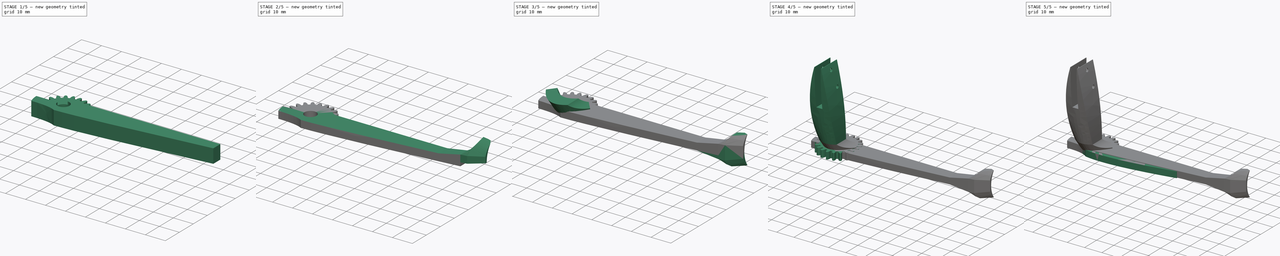
[diagram: build sequence overview — one tinted view per stage of 5, left to right]
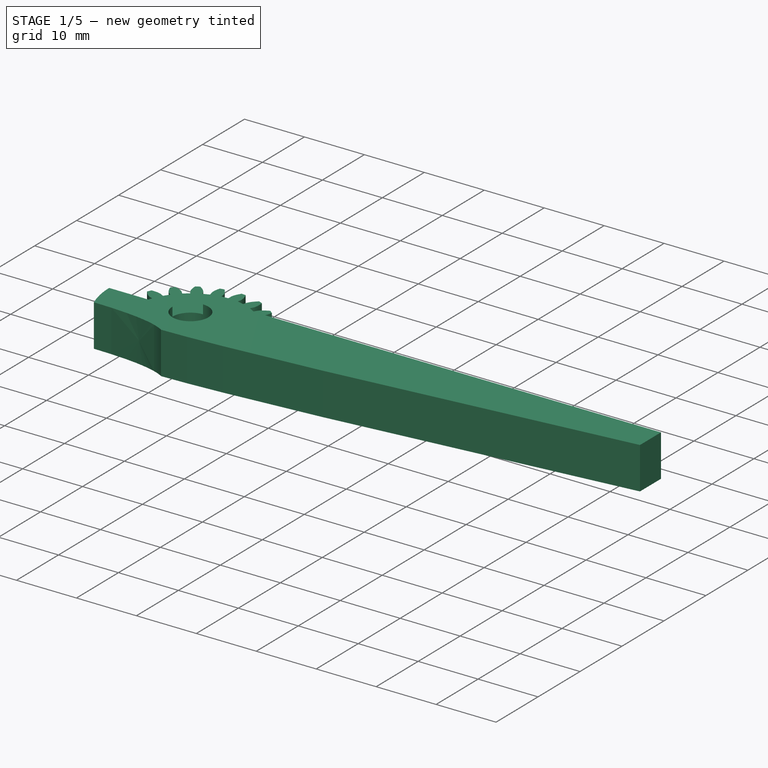
[diagram: stage 1 of 5 — iso view after this stage's code; geometry added in this stage tinted green]
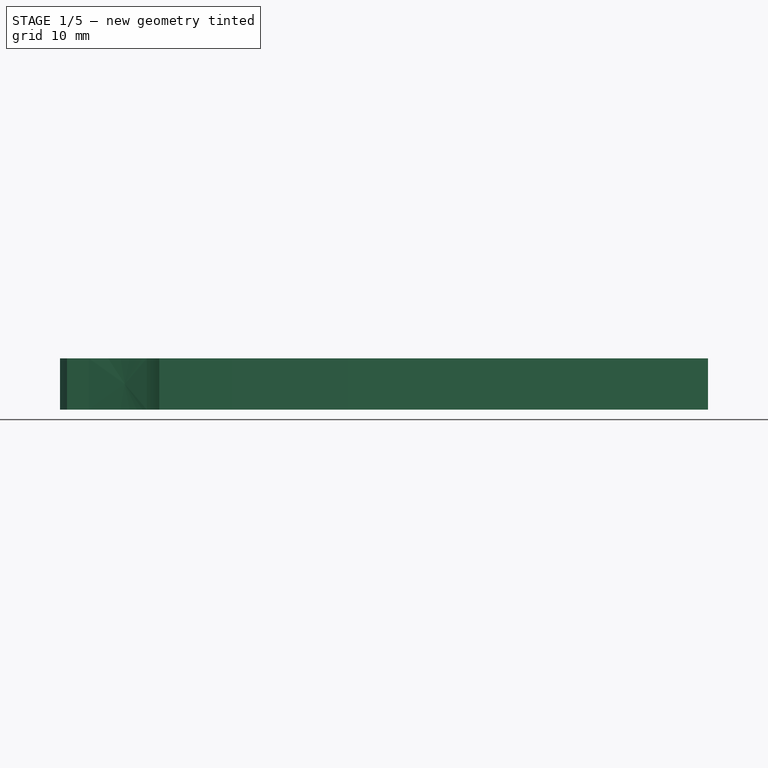
[diagram: stage 1 of 5 — front view after this stage's code; geometry added in this stage tinted green]
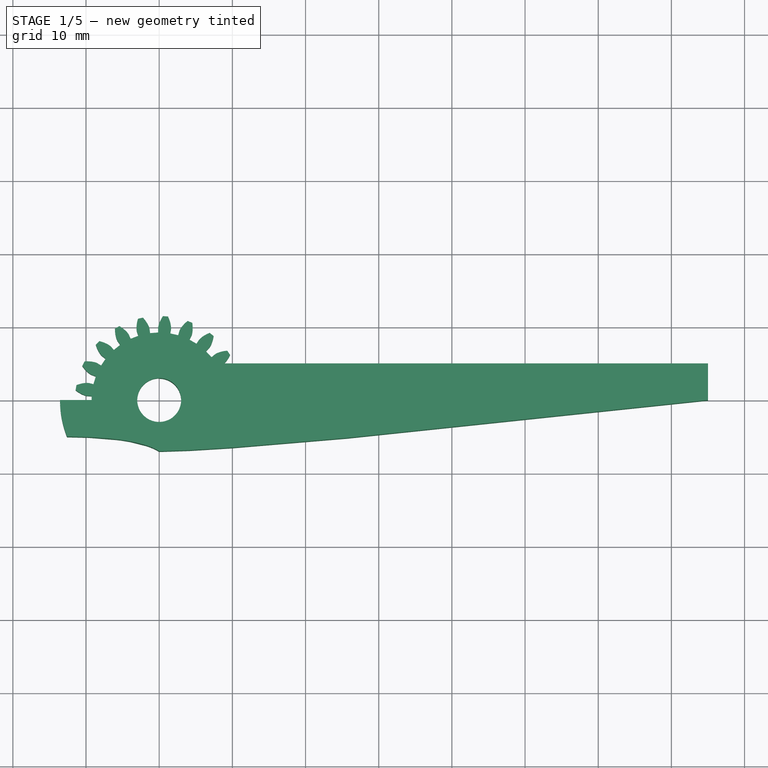
[diagram: stage 1 of 5 — top view after this stage's code; geometry added in this stage tinted green]
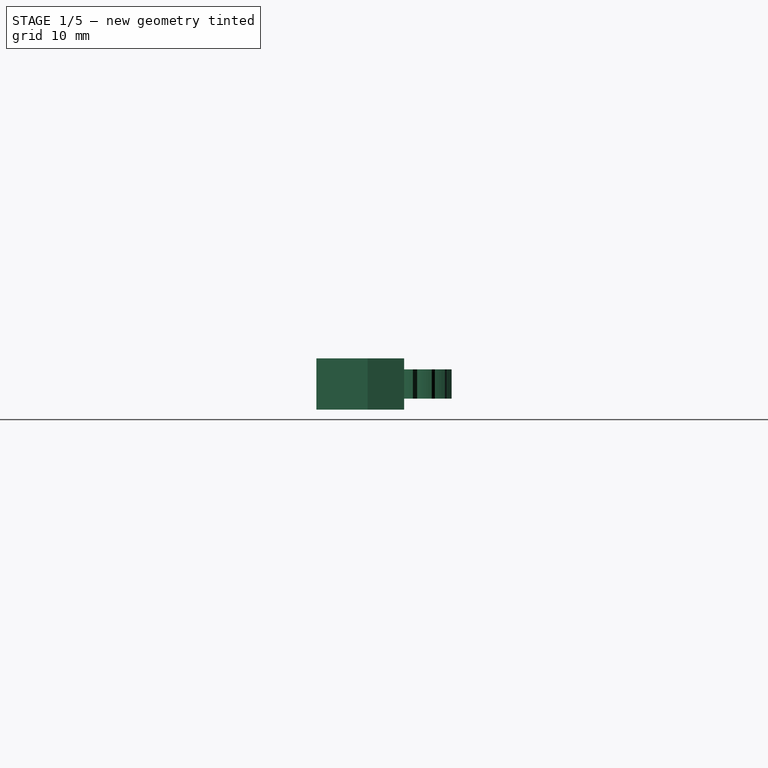
[diagram: stage 1 of 5 — right view after this stage's code; geometry added in this stage tinted green]
FCSTD DOCUMENT  (FreeCAD 1.0R39319 (Git))
Label: GripperFinger
License: All rights reserved
LicenseURL: https://en.wikipedia.org/wiki/All_rights_reserved
objects: Sketcher::SketchObject×21, PartDesign::Pocket×12, PartDesign::Body×3, PartDesign::AdditiveLoft×3, PartDesign::FeaturePython×2, PartDesign::Pad×2, PartDesign::Plane×2, PartDesign::Mirrored×2, PartDesign::Chamfer×1, App::LinkGroup×1
note: 109 computed .brp shape members not serialized (recipe doc carries the construction recipe); baked Part::Feature solids carry a one-line shape summary decoded from their .brp

FEATURE [PartDesign::Body] Body001  label="FingerSpring"
  AllowCompound = false
  Group = -> [Sketch007,Sketch010,AdditiveLoft,Sketch013,DatumPlane,Sketch014,Pocket007,Mirrored,Sketch015,Sketch016,Sketch017,AdditiveLoft001,Pocket008,Sketch018,Pocket009]
  Origin = -> Origin001
  Placement = pos=(2,9.8,-78) rot=(0,0,1;0rad)
  Tip = -> Pocket009
FEATURE [PartDesign::FeaturePython] InvoluteGear001  # WARN: FeaturePython — macro-defined, semantics opaque (R4)
  AttacherType = Attacher::AttachEngine3D
  Suppressed = false
  addendum_diameter = 23
  angular_backlash = 0
  axle_hole = false
  axle_holesize = 10
  backlash = 0
  clearance = 0.25
  double_helix = false
  head = 0
  head_fillet = 0
  height = 4
  helix_angle = 0
  module = 1
  num_teeth = 21
  numpoints = 20
  offset_hole = false
  offset_holeoffset = 10
  offset_holesize = 10
  pitch_diameter = 21
  pressure_angle = 20
  properties_from_tool = false
  reversed_backlash = false
  root_diameter = 18.5
  root_fillet = 0
  shift = 0
  simple = false
  transverse_pitch = 3.14159
  traverse_module = 1
  undercut = false
  version = 1.3.0
  expr: angular_backlash = backlash / pitch_diameter * 360 ° / pi
FEATURE [Sketcher::SketchObject] Sketch019
  ArcFitTolerance = 1e-06
  AttachmentSupport = -> [InvoluteGear001]
  FullyConstrained = false
  MakeInternals = false
  MapMode = 5
  Placement = pos=(0,0,0) rot=(1,0,0;3.14159rad)
  sketch-geometry (4):
    g0: LineSegment StartX=-14.5578 StartY=0 StartZ=0 EndX=16.3975 EndY=0 EndZ=0
    g1: LineSegment StartX=16.3975 StartY=0 StartZ=0 EndX=16.3975 EndY=18.6359 EndZ=0
    g2: LineSegment StartX=16.3975 StartY=18.6359 StartZ=0 EndX=-14.5578 EndY=18.6359 EndZ=0
    g3: LineSegment StartX=-14.5578 StartY=18.6359 StartZ=0 EndX=-14.5578 EndY=0 EndZ=0
  constraints (9):
    c: Coincident(g0,g1)
    c: Coincident(g1,g2)
    c: Coincident(g2,g3)
    c: Coincident(g3,g0)
    c: Horizontal(g0)
    c: Horizontal(g2)
    c: Vertical(g1)
    c: Vertical(g3)
    c: PointOnObject(g0,g-1)
FEATURE [PartDesign::Pocket] Pocket010
  BaseFeature = -> InvoluteGear001
  Direction = (0,0,1)
  Length = 5
  Length2 = 5
  Profile = -> Sketch019
  ReferenceAxis = -> Sketch019 [N_Axis]
  Refine = true
  Suppressed = false
  Type = 0
FEATURE [Sketcher::SketchObject] Sketch020
  ArcFitTolerance = 1e-06
  AttachmentOffset = pos=(0,0,1.5) rot=(0,0,1;0rad)
  AttachmentSupport = -> [Pocket010]
  FullyConstrained = false
  MakeInternals = false
  MapMode = 5
  Placement = pos=(0,0,-1.5) rot=(1,0,0;3.14159rad)
  sketch-geometry (17):
    g0: Circle [constr] CenterX=-12.5995 CenterY=5 CenterZ=0 NormalX=0 NormalY=0 NormalZ=1 AngleXU=0 Radius=1
    g1: Circle [constr] CenterX=-3.0955 CenterY=5.05206 CenterZ=0 NormalX=0 NormalY=0 NormalZ=1 AngleXU=0 Radius=1
    g2: Circle [constr] CenterX=0 CenterY=7 CenterZ=0 NormalX=0 NormalY=0 NormalZ=1 AngleXU=0 Radius=1
    g3: BSplineCurve PolesCount=3 KnotsCount=2 Degree=2 IsPeriodic=0
    g4: GeomPoint [constr] X=-12.5995 Y=5 Z=0
    g5: GeomPoint [constr] X=0 Y=7 Z=0
    g6: Circle [constr] CenterX=0 CenterY=7 CenterZ=0 NormalX=0 NormalY=0 NormalZ=1 AngleXU=0 Radius=1
    g7: Circle [constr] CenterX=13.9579 CenterY=6.86109 CenterZ=0 NormalX=0 NormalY=0 NormalZ=1 AngleXU=0 Radius=1
    g8: Circle [constr] CenterX=75 CenterY=1.7e-15 CenterZ=0 NormalX=0 NormalY=0 NormalZ=1 AngleXU=0 Radius=1
    g9: BSplineCurve PolesCount=3 KnotsCount=2 Degree=2 IsPeriodic=0
    g10: GeomPoint [constr] X=0 Y=7 Z=0
    g11: GeomPoint [constr] X=75 Y=0 Z=0
    g12: LineSegment StartX=0 StartY=-5 StartZ=0 EndX=75 EndY=-5 EndZ=0
    g13: LineSegment StartX=-13.5554 StartY=1.7e-15 StartZ=0 EndX=0 EndY=1.7e-15 EndZ=0
    g14: LineSegment StartX=0 StartY=1.7e-15 StartZ=0 EndX=0 EndY=-5 EndZ=0
    g15: ArcOfCircle CenterX=0 CenterY=1.7e-15 CenterZ=0 NormalX=0 NormalY=0 NormalZ=1 AngleXU=0 Radius=13.5554 StartAngle=2.76381 EndAngle=3.14159
    g16: LineSegment StartX=75 StartY=1.7e-15 StartZ=0 EndX=75 EndY=-5 EndZ=0
  constraints (35):
    c: Weight(g0) = 1
    c: Equal(g0,g1)
    c: Equal(g0,g2)
    c: InternalAlignment(g0,g3)
    c: InternalAlignment(g1,g3)
    c: InternalAlignment(g2,g3)
    c: InternalAlignment(g4,g3)
    c: InternalAlignment(g5,g3)
    c: Weight(g6) = 1
    c: Equal(g6,g7)
    c: Equal(g6,g8)
    c: InternalAlignment(g6,g9)
    c: InternalAlignment(g7,g9)
    c: InternalAlignment(g8,g9)
    c: InternalAlignment(g10,g9)
    c: InternalAlignment(g11,g9)
    c: Coincident(g6,g3)
    c: Horizontal(g12)
    c: Vertical(g-1,g9)
    c: Vertical(g12,g-1)
    c: Coincident(g13,g-1)
    c: Coincident(g13,g14)
    c: Coincident(g14,g12)
    c: Distance(g3,g13) = 5
    c: Horizontal(g13,g13)
    c: Coincident(g15,g13)
    c: Coincident(g15,g3)
    c: Coincident(g15,g13)
    c: Coincident(g16,g9)
    c: Vertical(g16)
    c: Distance(g-2,g16) = 75
    c: DistanceY(g-1,g9) = 7
    c: Coincident(g12,g16)
    c: Horizontal(g9,g13)
    c: Distance(g-1,g12) = 5
FEATURE [PartDesign::Pad] Pad001
  BaseFeature = -> Pocket010
  Direction = (0,0,-1)
  Length = 7
  Length2 = 10
  Profile = -> Sketch020
  ReferenceAxis = -> Sketch020 [N_Axis]
  Refine = true
  Reversed = true
  Suppressed = false
  Type = 0
FEATURE [Sketcher::SketchObject] Sketch021
  ArcFitTolerance = 1e-06
  AttachmentOffset = pos=(0,0,3) rot=(0,0,1;0rad)
  AttachmentSupport = -> [Pad001]
  FullyConstrained = true
  MakeInternals = false
  MapMode = 5
  Placement = pos=(0,0,-3) rot=(1,0,0;3.14159rad)
  sketch-geometry (1):
    g0: Circle CenterX=0 CenterY=0 CenterZ=0 NormalX=0 NormalY=0 NormalZ=1 AngleXU=0 Radius=3
  constraints (2):
    c: Diameter(g0) = 6
    c: Coincident(g0,g-1)
FEATURE [PartDesign::Pocket] Pocket011
  BaseFeature = -> Pad001
  Direction = (0,0,1)
  Length = 5
  Length2 = 5
  Profile = -> Sketch021
  ReferenceAxis = -> Sketch021 [N_Axis]
  Refine = true
  Suppressed = false
  Type = 1
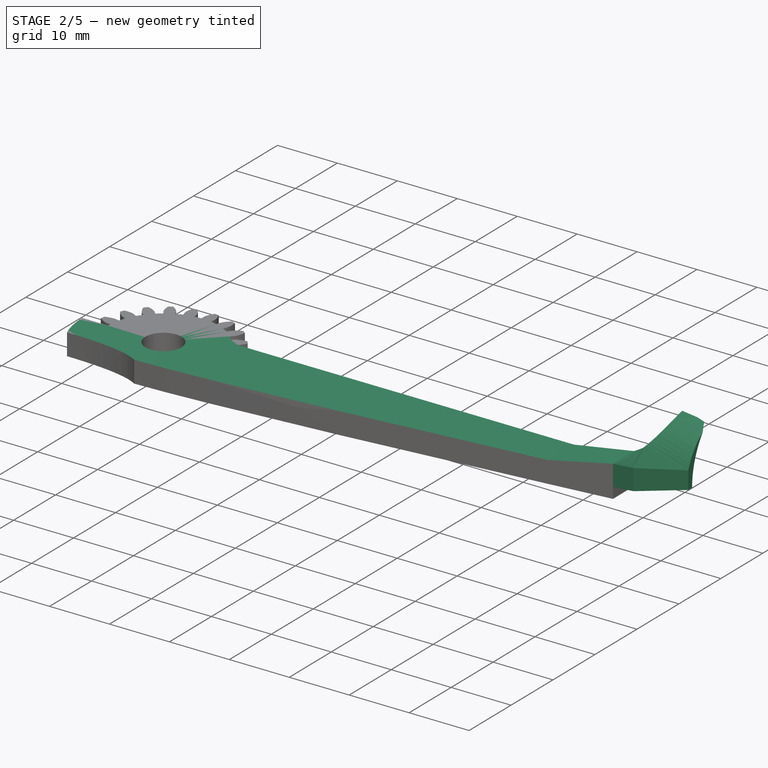
[diagram: stage 2 of 5 — iso view after this stage's code; geometry added in this stage tinted green]
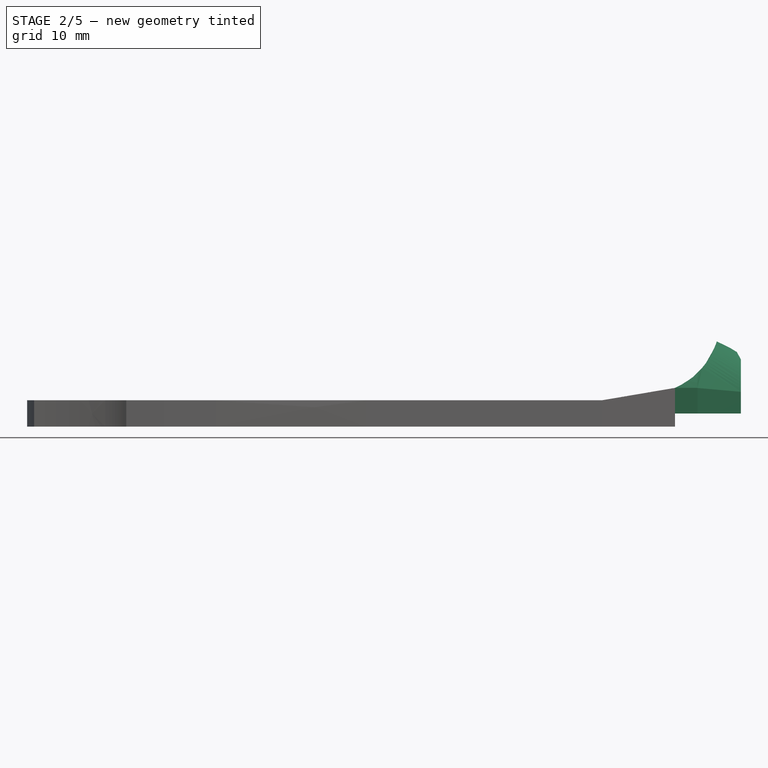
[diagram: stage 2 of 5 — front view after this stage's code; geometry added in this stage tinted green]
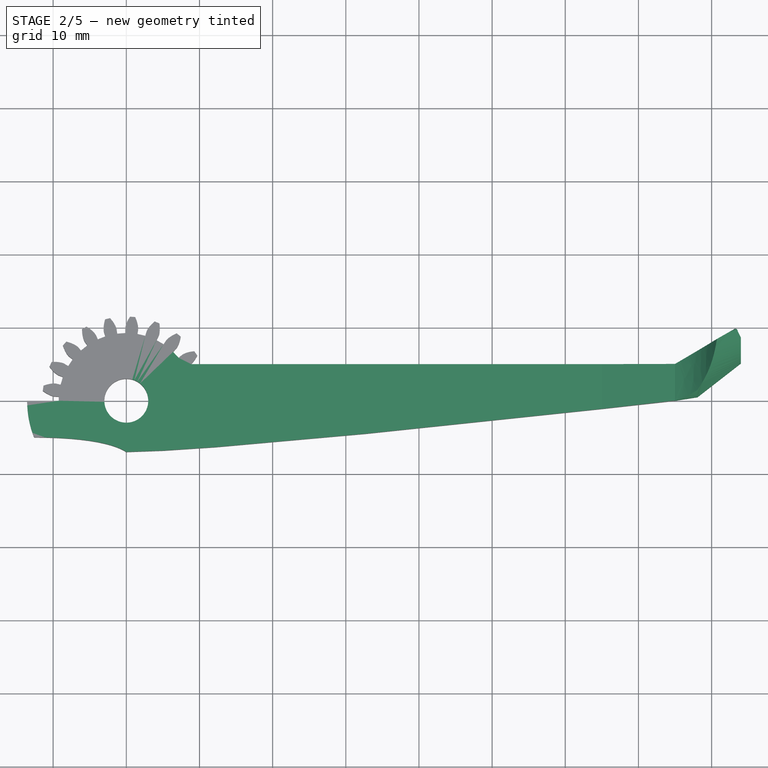
[diagram: stage 2 of 5 — top view after this stage's code; geometry added in this stage tinted green]
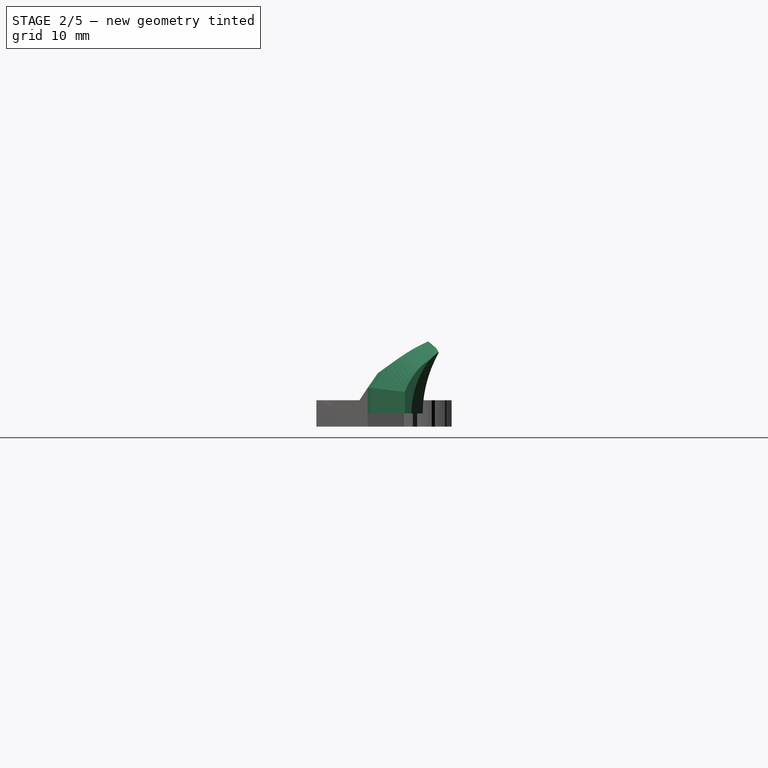
[diagram: stage 2 of 5 — right view after this stage's code; geometry added in this stage tinted green]
FEATURE [Sketcher::SketchObject] Sketch022
  ArcFitTolerance = 1e-06
  AttachmentOffset = pos=(0,0,-25) rot=(0,0,1;0rad)
  AttachmentSupport = -> [YZ_Plane002]
  FullyConstrained = false
  MakeInternals = false
  MapMode = 5
  Placement = pos=(-25,0,0) rot=(0.57735,0.57735,0.57735;2.0944rad)
  sketch-geometry (8):
    g0: LineSegment StartX=-24.0271 StartY=12.204 StartZ=0 EndX=-24.0271 EndY=3.8 EndZ=0
    g1: LineSegment StartX=-24.0271 StartY=3.8 StartZ=0 EndX=23.0976 EndY=3.8 EndZ=0
    g2: LineSegment StartX=23.0976 StartY=3.8 StartZ=0 EndX=23.0976 EndY=12.204 EndZ=0
    g3: LineSegment StartX=23.0976 StartY=12.204 StartZ=0 EndX=-24.0271 EndY=12.204 EndZ=0
    g4: LineSegment StartX=-23.6185 StartY=0.2 StartZ=0 EndX=-23.6185 EndY=-13.6366 EndZ=0
    g5: LineSegment StartX=-23.6185 StartY=-13.6366 StartZ=0 EndX=23.3999 EndY=-13.6366 EndZ=0
    g6: LineSegment StartX=23.3999 StartY=-13.6366 StartZ=0 EndX=23.3999 EndY=0.2 EndZ=0
    g7: LineSegment StartX=23.3999 StartY=0.2 StartZ=0 EndX=-23.6185 EndY=0.2 EndZ=0
  constraints (18):
    c: Coincident(g0,g1)
    c: Coincident(g1,g2)
    c: Coincident(g2,g3)
    c: Coincident(g3,g0)
    c: Vertical(g0)
    c: Vertical(g2)
    c: Horizontal(g1)
    c: Horizontal(g3)
    c: Distance(g-1,g1) = 3.8
    c: Coincident(g4,g5)
    c: Coincident(g5,g6)
    c: Coincident(g6,g7)
    c: Coincident(g7,g4)
    c: Vertical(g4)
    c: Vertical(g6)
    c: Horizontal(g5)
    c: Horizontal(g7)
    c: Distance(g1,g7) = 3.6
FEATURE [PartDesign::Pocket] Pocket012
  BaseFeature = -> Pocket011
  Direction = (-1,0,0)
  Length = 90
  Length2 = 5
  Profile = -> Sketch022
  ReferenceAxis = -> Sketch022 [N_Axis]
  Refine = true
  Reversed = true
  Suppressed = false
  Type = 0
FEATURE [Sketcher::SketchObject] Sketch023
  ArcFitTolerance = 1e-06
  AttachmentOffset = pos=(0,2,9) rot=(0,0,1;0rad)
  AttachmentSupport = -> [Pocket012]
  ExternalGeometry = -> [Pocket012]
  FullyConstrained = false
  MakeInternals = false
  MapMode = 5
  Placement = pos=(84,0,2) rot=(0.57735,0.57735,0.57735;2.0944rad)
  sketch-geometry (10):
    g0: Circle [constr] CenterX=1.41082 CenterY=3.5 CenterZ=0 NormalX=0 NormalY=0 NormalZ=1 AngleXU=0 Radius=1
    g1: Circle [constr] CenterX=3.41067 CenterY=8.94088 CenterZ=0 NormalX=0 NormalY=0 NormalZ=1 AngleXU=0 Radius=1
    g2: Circle [constr] CenterX=8.09245 CenterY=11.1604 CenterZ=0 NormalX=0 NormalY=0 NormalZ=1 AngleXU=0 Radius=1
    g3: BSplineCurve PolesCount=3 KnotsCount=2 Degree=2 IsPeriodic=0
    g4: GeomPoint [constr] X=1.41082 Y=3.5 Z=0
    g5: GeomPoint [constr] X=8.09245 Y=11.1604 Z=0
    g6: LineSegment StartX=8.09245 StartY=11.1604 StartZ=0 EndX=9.59245 EndY=8.56231 EndZ=0
    g7: ArcOfCircle CenterX=18 CenterY=0 CenterZ=0 NormalX=0 NormalY=0 NormalZ=1 AngleXU=0 Radius=12 StartAngle=2.34708 EndAngle=3.14159
    g8: LineSegment StartX=1.41082 StartY=3.5 StartZ=0 EndX=1.41082 EndY=1.3e-15 EndZ=0
    g9: LineSegment StartX=1.41082 StartY=1.3e-15 StartZ=0 EndX=6 EndY=1.3e-15 EndZ=0
  constraints (23):
    c: Weight(g0) = 1
    c: Equal(g0,g1)
    c: Equal(g0,g2)
    c: InternalAlignment(g0,g3)
    c: InternalAlignment(g1,g3)
    c: InternalAlignment(g2,g3)
    c: InternalAlignment(g4,g3)
    c: InternalAlignment(g5,g3)
    c: Coincident(g6,g3)
    c: PointOnObject(g7,g-1)
    c: Coincident(g7,g6)
    c: DistanceX(g-1,g7) = 18
    c: Radius(g7) = 12
    c: Angle(g6,g-1) = 1.0472
    c: Coincident(g8,g3)
    c: PointOnObject(g8,g-1)
    c: Vertical(g8)
    c: Coincident(g8,g9)
    c: Coincident(g9,g7)
    c: Horizontal(g9)
    c: Horizontal(g3,g-3)
    c: Distance(g6,g6) = 3
    c: Distance(g7,g6) = 3
FEATURE [Sketcher::SketchObject] Sketch024
  ArcFitTolerance = 1e-06
  AttachmentOffset = pos=(0,2,0) rot=(0,0,1;0rad)
  AttachmentSupport = -> [Pocket012]
  ExternalGeometry = -> [Pocket012]
  FullyConstrained = false
  MakeInternals = false
  MapMode = 5
  Placement = pos=(75,0,2) rot=(0.57735,0.57735,0.57735;2.0944rad)
  sketch-geometry (10):
    g0: ArcOfCircle CenterX=18 CenterY=0 CenterZ=0 NormalX=0 NormalY=0 NormalZ=1 AngleXU=0 Radius=9 StartAngle=2.43423 EndAngle=3.14159
    g1: Circle [constr] CenterX=-4e-16 CenterY=3.5 CenterZ=0 NormalX=0 NormalY=0 NormalZ=1 AngleXU=0 Radius=1
    g2: Circle [constr] CenterX=1.88607 CenterY=8.5237 CenterZ=0 NormalX=0 NormalY=0 NormalZ=1 AngleXU=0 Radius=1
    g3: Circle [constr] CenterX=7.60571 CenterY=12.0034 CenterZ=0 NormalX=0 NormalY=0 NormalZ=1 AngleXU=0 Radius=1
    g4: BSplineCurve PolesCount=3 KnotsCount=2 Degree=2 IsPeriodic=0
    g5: GeomPoint [constr] X=-4e-16 Y=3.5 Z=0
    g6: GeomPoint [constr] X=7.60571 Y=12.0034 Z=0
    g7: LineSegment StartX=7.60571 StartY=12.0034 StartZ=0 EndX=11.1593 EndY=5.84847 EndZ=0
    g8: LineSegment StartX=-4e-16 StartY=3.5 StartZ=0 EndX=0 EndY=0 EndZ=0
    g9: LineSegment StartX=9 StartY=1.1e-15 StartZ=0 EndX=0 EndY=0 EndZ=0
  constraints (21):
    c: Radius(g0) = 9
    c: PointOnObject(g0,g-1)
    c: PointOnObject(g0,g-1)
    c: DistanceX(g-1,g0) = 18
    c: Weight(g1) = 1
    c: Equal(g1,g2)
    c: Equal(g1,g3)
    c: InternalAlignment(g1,g4)
    c: InternalAlignment(g2,g4)
    c: InternalAlignment(g3,g4)
    c: InternalAlignment(g5,g4)
    c: InternalAlignment(g6,g4)
    c: Coincident(g7,g4)
    c: Coincident(g7,g0)
    c: Coincident(g4,g-3)
    c: Coincident(g8,g4)
    c: Symmetric(g-3,g-3,g8)
    c: Coincident(g9,g0)
    c: Coincident(g9,g8)
    c: Angle(g-1,g7) = 2.0944
    c: Distance(g0,g7) = 3
FEATURE [PartDesign::AdditiveLoft] AdditiveLoft002
  BaseFeature = -> Pocket012
  Closed = false
  Profile = -> Sketch023
  Refine = true
  Ruled = false
  Sections = -> [Sketch024]
  Suppressed = false
FEATURE [Sketcher::SketchObject] Sketch027
  ArcFitTolerance = 1e-06
  AttachmentSupport = -> [AdditiveLoft002]
  FullyConstrained = false
  MakeInternals = false
  MapMode = 45
  Placement = pos=(79.0131,4.14569,2) rot=(0,0,1;1.33086rad)
  sketch-geometry (4):
    g0: LineSegment StartX=-0.123853 StartY=4.10118 StartZ=0 EndX=10.364 EndY=-6.8556 EndZ=0
    g1: LineSegment StartX=-0.123853 StartY=4.10118 StartZ=0 EndX=5.99341 EndY=7.95613 EndZ=0
    g2: LineSegment StartX=10.364 StartY=-6.8556 StartZ=0 EndX=17.134 EndY=-5.19933 EndZ=0
    g3: LineSegment StartX=5.99341 StartY=7.95613 StartZ=0 EndX=17.134 EndY=-5.19933 EndZ=0
  constraints (7):
    c: Coincident(g0,g-4)
    c: Coincident(g1,g0)
    c: Angle(g0,g-4) = 1.0472
    c: Coincident(g2,g0)
    c: Coincident(g1,g3)
    c: Coincident(g3,g2)
    c: Parallel(g2,g-4)
FEATURE [PartDesign::Chamfer] Chamfer
  Angle = 29
  Base = -> AdditiveLoft002 [Edge200,Edge205]
  BaseFeature = -> AdditiveLoft002
  ChamferType = 2
  FlipDirection = false
  Refine = true
  Size = 6
  Size2 = 1
  SupportTransform = false
  Suppressed = false
  UseAllEdges = false
FEATURE [PartDesign::Pocket] Pocket017
  BaseFeature = -> Chamfer
  Direction = (0,0,-1)
  Length = 5
  Length2 = 5
  Profile = -> Sketch027
  ReferenceAxis = -> Sketch027 [N_Axis]
  Refine = true
  Reversed = true
  Suppressed = false
  Type = 1
FEATURE [Sketcher::SketchObject] Sketch028
  ArcFitTolerance = 1e-06
  AttachmentOffset = pos=(0,0,6) rot=(0,0,1;0rad)
  AttachmentSupport = -> [Pocket017]
  ExternalGeometry = -> [Pocket017]
  FullyConstrained = false
  MakeInternals = false
  MapMode = 5
  Placement = pos=(0,11,-1.3e-15) rot=(0,0.707107,0.707107;3.14159rad)
  sketch-geometry (13):
    g0: Circle [constr] CenterX=-75 CenterY=5.5 CenterZ=0 NormalX=0 NormalY=0 NormalZ=1 AngleXU=0 Radius=1
    g1: Circle [constr] CenterX=-80.5652 CenterY=7.89941 CenterZ=0 NormalX=0 NormalY=0 NormalZ=1 AngleXU=0 Radius=1
    g2: Circle [constr] CenterX=-81.5147 CenterY=15.3694 CenterZ=0 NormalX=0 NormalY=0 NormalZ=1 AngleXU=0 Radius=1
    g3: BSplineCurve PolesCount=3 KnotsCount=2 Degree=2 IsPeriodic=0
    g4: GeomPoint [constr] X=-75 Y=5.5 Z=0
    g5: GeomPoint [constr] X=-81.5147 Y=15.3694 Z=0
    g6: LineSegment StartX=-75 StartY=5.5 StartZ=0 EndX=-65 EndY=3.8 EndZ=0
    g7: LineSegment StartX=-65 StartY=3.8 StartZ=0 EndX=-65 EndY=15.3694 EndZ=0
    g8: LineSegment StartX=-65 StartY=15.3694 StartZ=0 EndX=-81.5147 EndY=15.3694 EndZ=0
    g9: LineSegment StartX=-65 StartY=-1.5 StartZ=0 EndX=-65 EndY=0.2 EndZ=0
    g10: LineSegment StartX=-65 StartY=0.2 StartZ=0 EndX=-79.539 EndY=0.2 EndZ=0
    g11: LineSegment StartX=-79.539 StartY=0.2 StartZ=0 EndX=-79.539 EndY=-1.5 EndZ=0
    g12: LineSegment StartX=-79.539 StartY=-1.5 StartZ=0 EndX=-65 EndY=-1.5 EndZ=0
  constraints (25):
    c: Weight(g0) = 1
    c: Equal(g0,g1)
    c: Equal(g0,g2)
    c: InternalAlignment(g0,g3)
    c: InternalAlignment(g1,g3)
    c: InternalAlignment(g2,g3)
    c: InternalAlignment(g4,g3)
    c: InternalAlignment(g5,g3)
    c: Coincident(g0,g-3)
    c: Coincident(g6,g3)
    c: Coincident(g6,g7)
    c: Vertical(g7)
    c: Coincident(g7,g8)
    c: Coincident(g8,g3)
    c: Horizontal(g8)
    c: Coincident(g-4,g6)
    c: Coincident(g9,g10)
    c: Coincident(g10,g11)
    c: Coincident(g11,g12)
    c: Coincident(g12,g9)
    c: Vertical(g11)
    c: Horizontal(g10)
    c: Horizontal(g12)
    c: Coincident(g9,g-5)
    c: Coincident(g-5,g9)
FEATURE [PartDesign::Pocket] Pocket018
  BaseFeature = -> Pocket017
  Direction = (0,-1,2e-16)
  Length = 5
  Length2 = 5
  Profile = -> Sketch028
  ReferenceAxis = -> Sketch028 [N_Axis]
  Refine = true
  Suppressed = false
  Type = 1
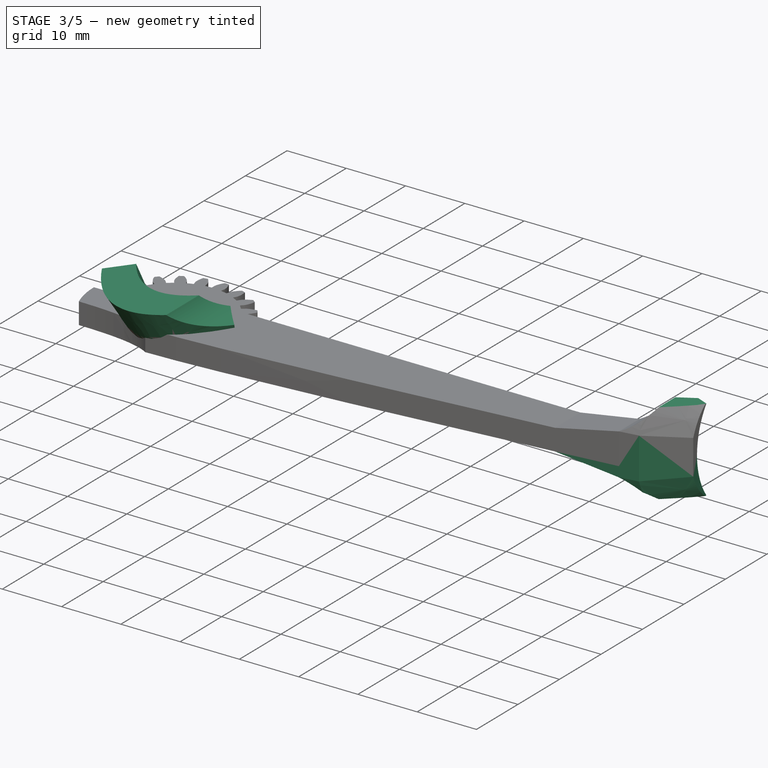
[diagram: stage 3 of 5 — iso view after this stage's code; geometry added in this stage tinted green]
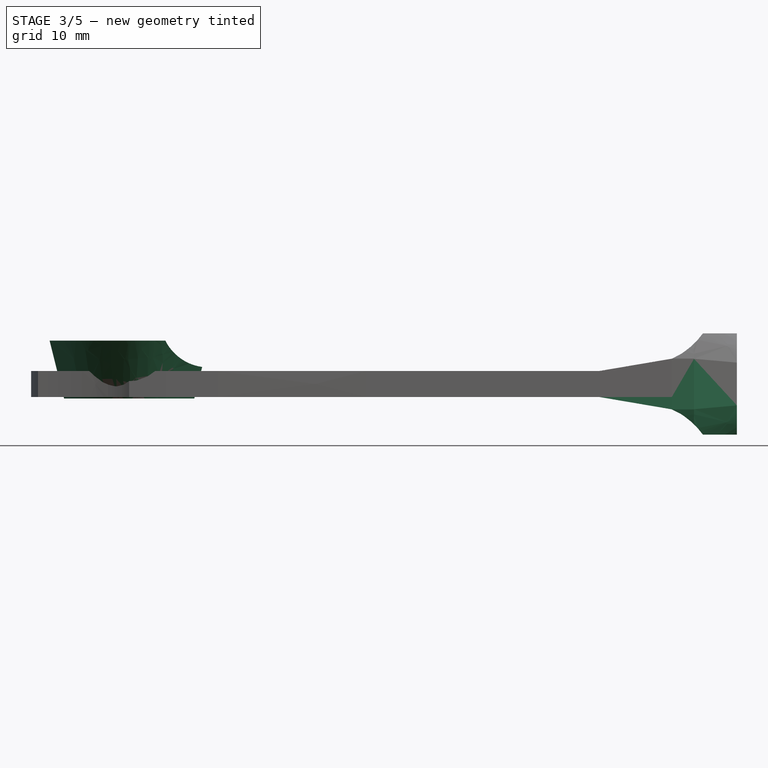
[diagram: stage 3 of 5 — front view after this stage's code; geometry added in this stage tinted green]
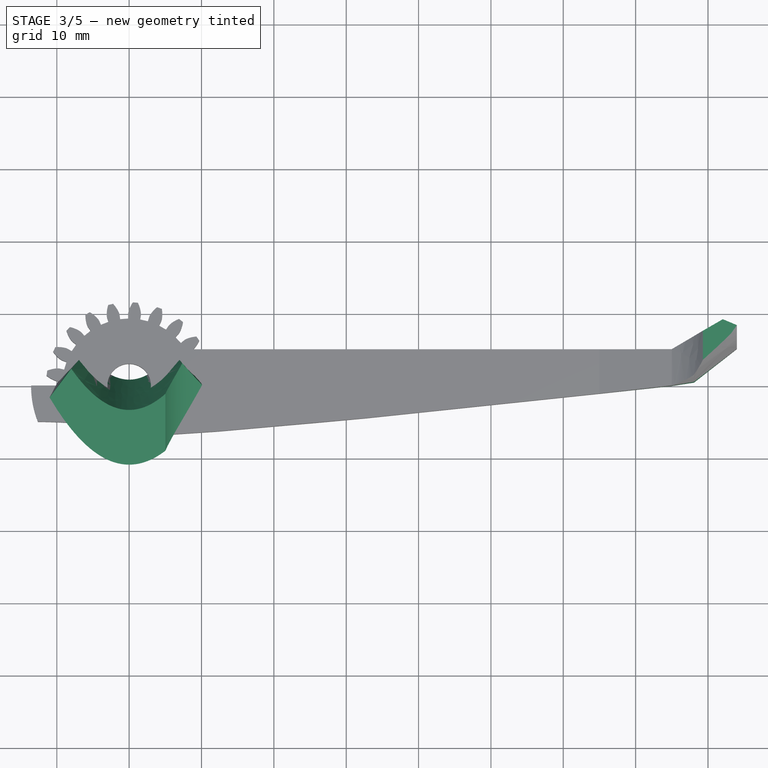
[diagram: stage 3 of 5 — top view after this stage's code; geometry added in this stage tinted green]
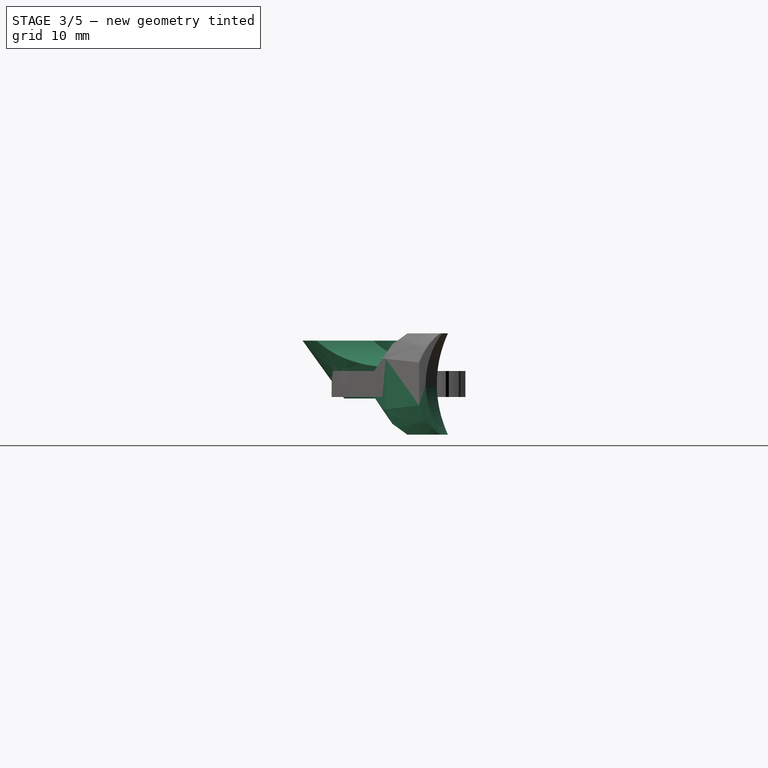
[diagram: stage 3 of 5 — right view after this stage's code; geometry added in this stage tinted green]
FEATURE [PartDesign::Body] Body  label="GripperFinger"
  AllowCompound = false
  Group = -> [InvoluteGear,Sketch,Pocket,Sketch001,Pad,Sketch005,Pocket003,Sketch012,Pocket006]
  Origin = -> Origin
  Placement = pos=(0,0,0) rot=(0,1,0;1.5708rad)
  Tip = -> Pocket006
FEATURE [PartDesign::AdditiveLoft] AdditiveLoft
  Closed = false
  Profile = -> Sketch007
  Refine = true
  Ruled = false
  Sections = -> [Sketch010]
  Suppressed = false
FEATURE [Sketcher::SketchObject] Sketch013
  ArcFitTolerance = 1e-06
  AttachmentOffset = pos=(0,-2,8) rot=(0,0,1;1.5708rad)
  AttachmentSupport = -> [Origin001]
  FullyConstrained = false
  MakeInternals = false
  Placement = pos=(0,-2,8) rot=(0,0,1;1.5708rad)
  sketch-geometry (4):
    g0: BSplineCurve PolesCount=3 KnotsCount=2 Degree=2 IsPeriodic=0
    g1: BSplineCurve PolesCount=3 KnotsCount=2 Degree=2 IsPeriodic=0
    g2: LineSegment StartX=-7.10277 StartY=5 StartZ=0 EndX=0.768193 EndY=5 EndZ=0
    g3: LineSegment StartX=-7.10277 StartY=-5 StartZ=0 EndX=0.768193 EndY=-5 EndZ=0
  constraints (8):
    c: Horizontal(g2)
    c: Horizontal(g3)
    c: Distance(g-1,g2) = 5
    c: Distance(g-1,g3) = 5
    c: Coincident(g0,g2)
    c: Coincident(g2,g1)
    c: Coincident(g3,g1)
    c: Coincident(g3,g0)
FEATURE [PartDesign::Plane] DatumPlane
  Length = 62.2474
  MapMode = 45
  Placement = pos=(1.6e-15,-10.3407,28) rot=(-1,0,0;1.5708rad)
  ResizeMode = 0
  Width = 87.2474
FEATURE [Sketcher::SketchObject] Sketch014
  ArcFitTolerance = 1e-06
  AttachmentSupport = -> [DatumPlane]
  FullyConstrained = false
  MakeInternals = false
  MapMode = 5
  Placement = pos=(1.6e-15,-10.3407,28) rot=(-1,0,0;1.5708rad)
  sketch-geometry (4):
    g0: ArcOfCircle CenterX=11 CenterY=17 CenterZ=0 NormalX=0 NormalY=0 NormalZ=1 AngleXU=0 Radius=6.7082 StartAngle=0.992248 EndAngle=2.67795
    g1: LineSegment StartX=5 StartY=20 StartZ=0 EndX=5 EndY=14.9671 EndZ=0
    g2: LineSegment StartX=5 StartY=14.9671 StartZ=0 EndX=14.6681 EndY=14.9671 EndZ=0
    g3: LineSegment StartX=14.6681 StartY=14.9671 StartZ=0 EndX=14.6681 EndY=22.6165 EndZ=0
  constraints (10):
    c: Coincident(g0,g-4)
    c: Distance(g0,g-2) = 11
    c: DistanceY(g-1,g0) = 17
    c: Coincident(g1,g0)
    c: Vertical(g1)
    c: Coincident(g2,g1)
    c: Horizontal(g2)
    c: Coincident(g3,g2)
    c: Coincident(g3,g0)
    c: Vertical(g3)
FEATURE [PartDesign::Pocket] Pocket007
  BaseFeature = -> AdditiveLoft
  Direction = (0,-1,-2e-16)
  Length = 5
  Length2 = 5
  Profile = -> Sketch014
  ReferenceAxis = -> Sketch014 [N_Axis]
  Refine = true
  Reversed = true
  Suppressed = false
  Type = 1
FEATURE [Sketcher::SketchObject] Sketch029
  ArcFitTolerance = 1e-06
  AttachmentSupport = -> [Pocket018]
  FullyConstrained = false
  MakeInternals = false
  MapMode = 5
  Placement = pos=(84,0,0) rot=(0.57735,0.57735,0.57735;2.0944rad)
  sketch-geometry (4):
    g0: LineSegment StartX=2.01361 StartY=9 StartZ=0 EndX=11.5867 EndY=9 EndZ=0
    g1: LineSegment StartX=2.01361 StartY=9 StartZ=0 EndX=6.70264 EndY=20.194 EndZ=0
    g2: LineSegment StartX=6.70264 StartY=20.194 StartZ=0 EndX=13.0389 EndY=20.194 EndZ=0
    g3: LineSegment StartX=13.0389 StartY=20.194 StartZ=0 EndX=11.5867 EndY=9 EndZ=0
  constraints (7):
    c: Coincident(g0,g1)
    c: Coincident(g1,g2)
    c: Horizontal(g2)
    c: Coincident(g2,g3)
    c: Coincident(g3,g0)
    c: Horizontal(g0)
    c: Distance(g-1,g0) = 9
FEATURE [PartDesign::Pocket] Pocket019
  BaseFeature = -> Pocket018
  Direction = (-1,0,0)
  Length = 5
  Length2 = 5
  Profile = -> Sketch029
  ReferenceAxis = -> Sketch029 [N_Axis]
  Refine = true
  Suppressed = false
  Type = 1
FEATURE [PartDesign::Plane] DatumPlane001
  AttachmentSupport = -> [Pocket019]
  Length = 121.505
  MapMode = 45
  Placement = pos=(78.7595,3.98151,2) rot=(0,0,1;2.12254rad)
  ResizeMode = 0
  Width = 140.824
FEATURE [PartDesign::Mirrored] Mirrored001
  BaseFeature = -> Pocket019
  MirrorPlane = -> DatumPlane001
  Refine = true
  Suppressed = false
  TransformMode = 1
FEATURE [PartDesign::Body] Body002  label="GripperFingerFullFinger"
  AllowCompound = false
  Group = -> [InvoluteGear001,Sketch019,Pocket010,Sketch020,Pad001,Sketch021,Pocket011,Sketch022,Pocket012,AdditiveLoft002,Sketch023,Sketch024,Sketch027,Sketch028,Chamfer,Pocket017,Pocket018,Sketch029,Pocket019,DatumPlane001,Mirrored001]
  Origin = -> Origin002
  Placement = pos=(0,0,0) rot=(0,1,0;1.5708rad)
  Tip = -> Mirrored001
FEATURE [App::LinkGroup] LinkGroup  label="Finger"
  ElementList = -> [Body002]
  LinkMode = 0
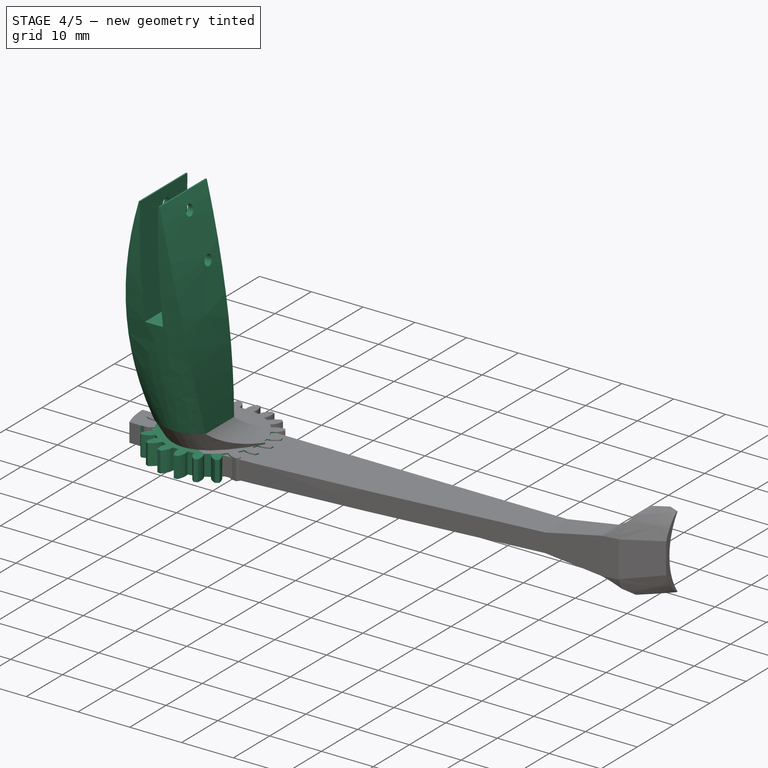
[diagram: stage 4 of 5 — iso view after this stage's code; geometry added in this stage tinted green]
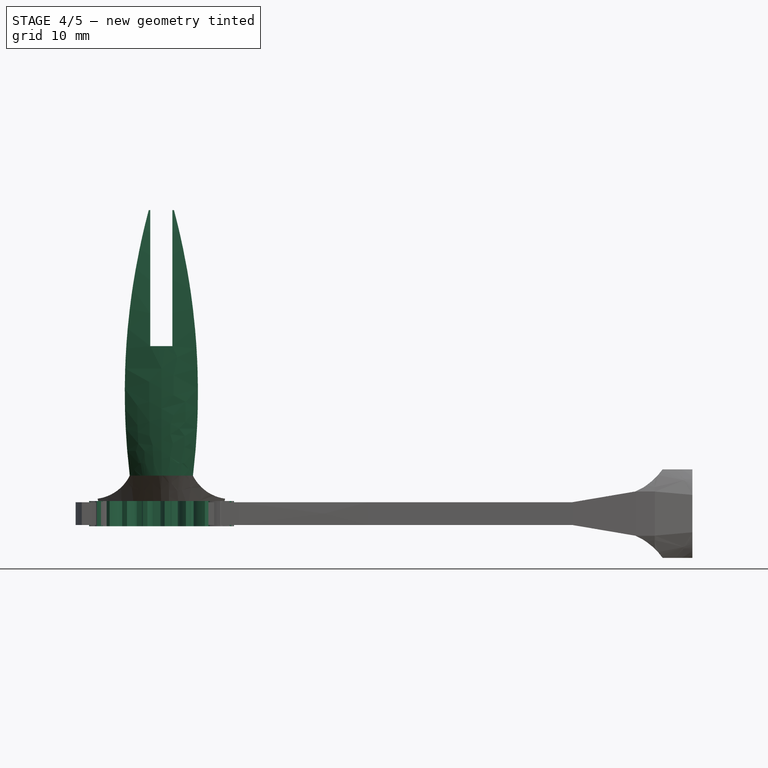
[diagram: stage 4 of 5 — front view after this stage's code; geometry added in this stage tinted green]
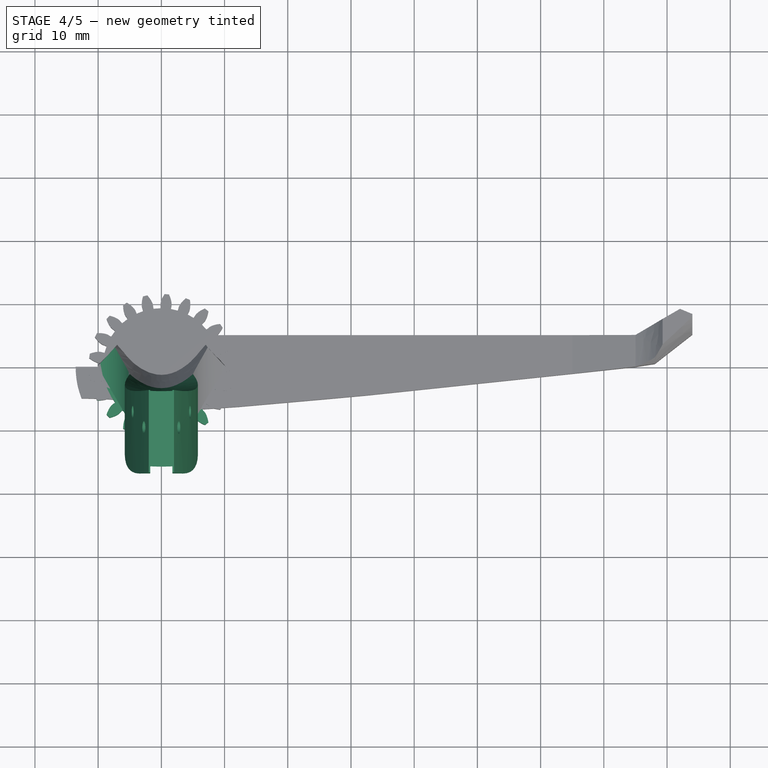
[diagram: stage 4 of 5 — top view after this stage's code; geometry added in this stage tinted green]
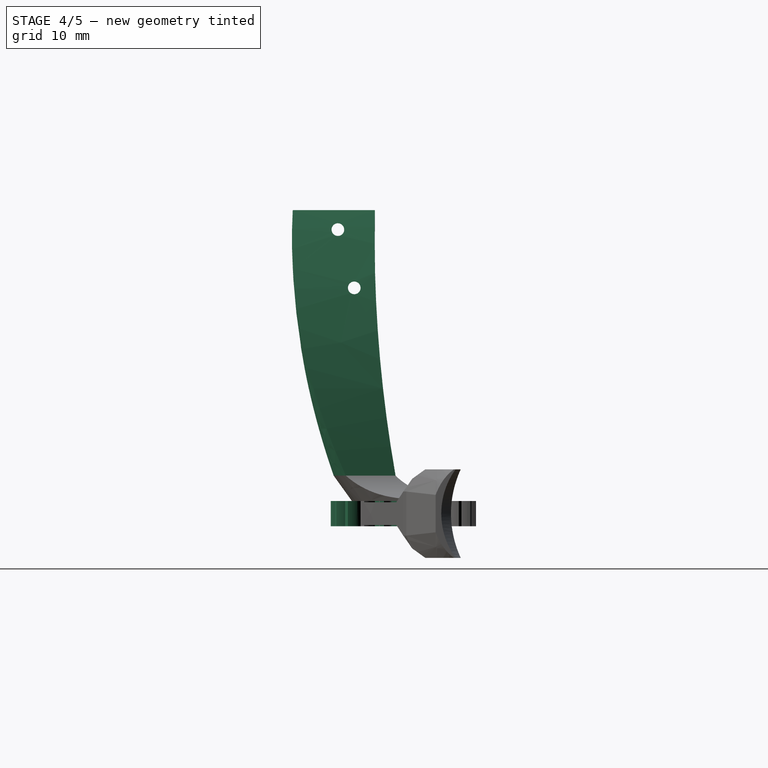
[diagram: stage 4 of 5 — right view after this stage's code; geometry added in this stage tinted green]
FEATURE [PartDesign::FeaturePython] InvoluteGear  # WARN: FeaturePython — macro-defined, semantics opaque (R4)
  AttacherType = Attacher::AttachEngine3D
  Suppressed = false
  addendum_diameter = 23
  angular_backlash = 0
  axle_hole = false
  axle_holesize = 10
  backlash = 0
  clearance = 0.25
  double_helix = false
  head = 0
  head_fillet = 0
  height = 4
  helix_angle = 0
  module = 1
  num_teeth = 21
  numpoints = 20
  offset_hole = false
  offset_holeoffset = 10
  offset_holesize = 10
  pitch_diameter = 21
  pressure_angle = 20
  properties_from_tool = false
  reversed_backlash = false
  root_diameter = 18.5
  root_fillet = 0
  shift = 0
  simple = false
  transverse_pitch = 3.14159
  traverse_module = 1
  undercut = false
  version = 1.3.0
  expr: angular_backlash = backlash / pitch_diameter * 360 ° / pi
FEATURE [PartDesign::Mirrored] Mirrored
  BaseFeature = -> Pocket007
  MirrorPlane = -> Sketch014 [V_Axis]
  Originals = -> [Pocket007]
  Refine = true
  Suppressed = false
  TransformMode = 0
FEATURE [Sketcher::SketchObject] Sketch015
  ArcFitTolerance = 1e-06
  AttachmentOffset = pos=(0,-12,-19) rot=(0,0,1;0rad)
  AttachmentSupport = -> [DatumPlane]
  ExternalGeometry = -> [Mirrored]
  FullyConstrained = false
  MakeInternals = false
  MapMode = 5
  Placement = pos=(1.6e-15,-29.3407,40) rot=(-1,0,0;1.5708rad)
  sketch-geometry (5):
    g0: LineSegment StartX=1.75 StartY=-20.5025 StartZ=0 EndX=1.75 EndY=11.5 EndZ=0
    g1: LineSegment StartX=1.75 StartY=11.5 StartZ=0 EndX=-1.75 EndY=11.5 EndZ=0
    g2: LineSegment StartX=-1.75 StartY=11.5 StartZ=0 EndX=-1.75 EndY=-20.5025 EndZ=0
    g3: LineSegment StartX=-1.75 StartY=-20.5025 StartZ=0 EndX=1.75 EndY=-20.5025 EndZ=0
    g4: GeomPoint [constr] X=0 Y=0 Z=0
  constraints (12):
    c: Coincident(g0,g1)
    c: Coincident(g1,g2)
    c: Coincident(g2,g3)
    c: Coincident(g3,g0)
    c: Vertical(g0)
    c: Vertical(g2)
    c: Horizontal(g1)
    c: Horizontal(g3)
    c: Coincident(g4,g-1)
    c: Distance(g3,g3) = 3.5
    c: Distance(g-3,g1) = 20.5
    c: Distance(g-2,g2) = 1.75
FEATURE [Sketcher::SketchObject] Sketch016
  ArcFitTolerance = 1e-06
  AttachmentOffset = pos=(0,-2,41) rot=(0,0,1;0rad)
  AttachmentSupport = -> [XY_Plane001]
  FullyConstrained = true
  MakeInternals = false
  MapMode = 5
  Placement = pos=(0,-2,41) rot=(0,0,1;0rad)
  sketch-geometry (4):
    g0: LineSegment StartX=-4 StartY=-2.5 StartZ=0 EndX=-4 EndY=-15.5 EndZ=0
    g1: LineSegment StartX=-4 StartY=-15.5 StartZ=0 EndX=4 EndY=-15.5 EndZ=0
    g2: LineSegment StartX=4 StartY=-15.5 StartZ=0 EndX=4 EndY=-2.5 EndZ=0
    g3: LineSegment StartX=4 StartY=-2.5 StartZ=0 EndX=-4 EndY=-2.5 EndZ=0
  constraints (12):
    c: Coincident(g0,g1)
    c: Coincident(g1,g2)
    c: Coincident(g2,g3)
    c: Coincident(g3,g0)
    c: Vertical(g0)
    c: Vertical(g2)
    c: Horizontal(g1)
    c: Horizontal(g3)
    c: Distance(g-2,g2) = 4
    c: Distance(g-2,g0) = 4
    c: DistanceY(g2,g2) = 13
    c: Distance(g-1,g3) = 2.5
FEATURE [Sketcher::SketchObject] Sketch017
  ArcFitTolerance = 1e-06
  AttachmentOffset = pos=(0,-2,50) rot=(0,0,1;0rad)
  AttachmentSupport = -> [XY_Plane001]
  FullyConstrained = true
  MakeInternals = false
  MapMode = 5
  Placement = pos=(0,-2,50) rot=(0,0,1;0rad)
  sketch-geometry (4):
    g0: LineSegment StartX=-2 StartY=-2.5 StartZ=0 EndX=-2 EndY=-15.5 EndZ=0
    g1: LineSegment StartX=-2 StartY=-15.5 StartZ=0 EndX=2 EndY=-15.5 EndZ=0
    g2: LineSegment StartX=2 StartY=-15.5 StartZ=0 EndX=2 EndY=-2.5 EndZ=0
    g3: LineSegment StartX=2 StartY=-2.5 StartZ=0 EndX=-2 EndY=-2.5 EndZ=0
  constraints (12):
    c: Coincident(g0,g1)
    c: Coincident(g1,g2)
    c: Coincident(g2,g3)
    c: Coincident(g3,g0)
    c: Vertical(g0)
    c: Vertical(g2)
    c: Horizontal(g1)
    c: Horizontal(g3)
    c: Distance(g-2,g2) = 2
    c: Distance(g-2,g0) = 2
    c: DistanceY(g2,g2) = 13
    c: Distance(g-1,g3) = 2.5
FEATURE [PartDesign::AdditiveLoft] AdditiveLoft001
  BaseFeature = -> Mirrored
  Closed = false
  Profile = -> Sketch013
  Refine = true
  Ruled = false
  Sections = -> [Sketch016,Sketch017]
  Suppressed = false
FEATURE [PartDesign::Pocket] Pocket008
  BaseFeature = -> AdditiveLoft001
  Direction = (0,-1,-2e-16)
  Length = 5
  Length2 = 5
  Profile = -> Sketch015
  ReferenceAxis = -> Sketch015 [N_Axis]
  Refine = true
  Reversed = true
  Suppressed = false
  Type = 1
FEATURE [Sketcher::SketchObject] Sketch018
  ArcFitTolerance = 1e-06
  AttachmentSupport = -> [YZ_Plane001]
  FullyConstrained = false
  MakeInternals = false
  MapMode = 5
  Placement = pos=(0,0,0) rot=(0.57735,0.57735,0.57735;2.0944rad)
  sketch-geometry (2):
    g0: Circle CenterX=-7.76687 CenterY=37.7063 CenterZ=0 NormalX=0 NormalY=0 NormalZ=1 AngleXU=0 Radius=1
    g1: Circle CenterX=-10.3585 CenterY=46.9237 CenterZ=0 NormalX=0 NormalY=0 NormalZ=1 AngleXU=0 Radius=1
  constraints (2):
    c: Diameter(g0) = 2
    c: Diameter(g1) = 2
FEATURE [PartDesign::Pocket] Pocket009
  BaseFeature = -> Pocket008
  Direction = (-1,0,0)
  Length = 5
  Length2 = 5
  Midplane = true
  Profile = -> Sketch018
  ReferenceAxis = -> Sketch018 [N_Axis]
  Refine = true
  Suppressed = false
  Type = 1
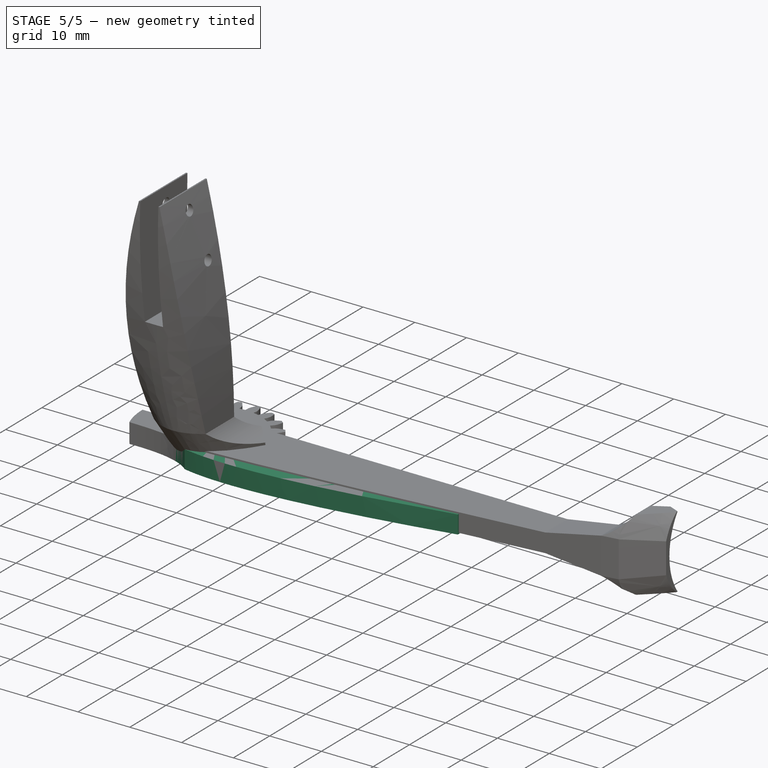
[diagram: stage 5 of 5 — iso view after this stage's code; geometry added in this stage tinted green]
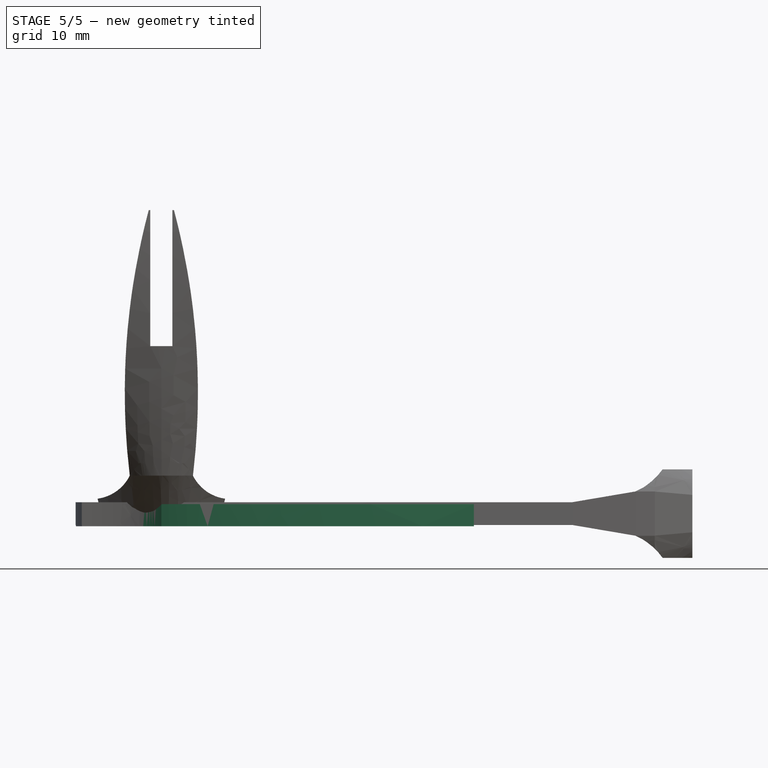
[diagram: stage 5 of 5 — front view after this stage's code; geometry added in this stage tinted green]
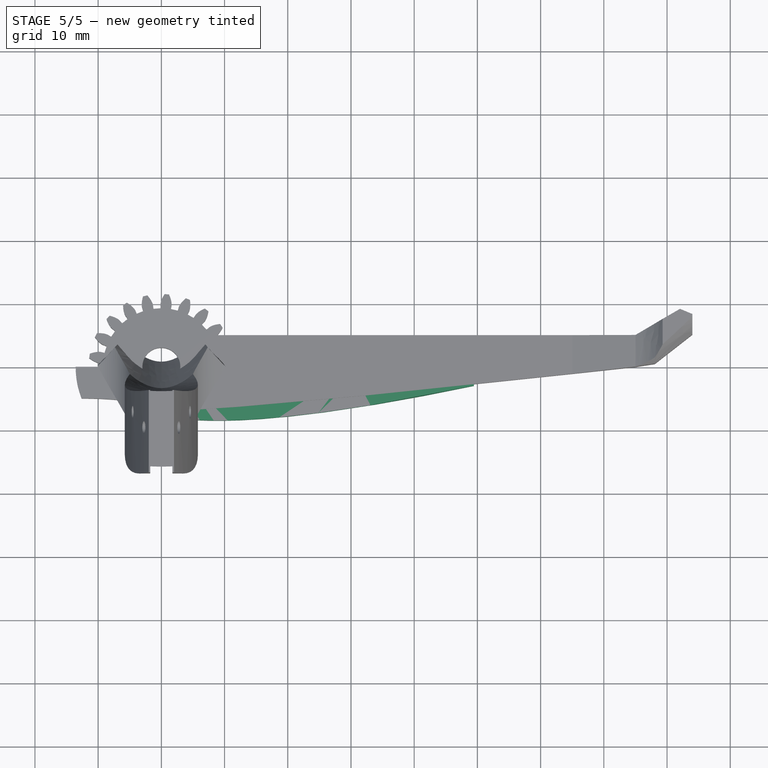
[diagram: stage 5 of 5 — top view after this stage's code; geometry added in this stage tinted green]
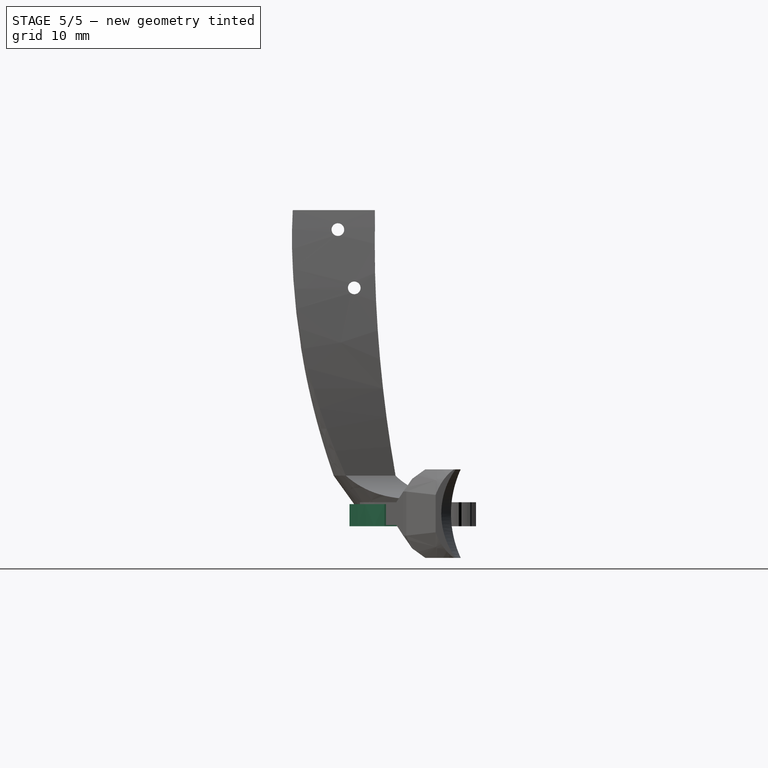
[diagram: stage 5 of 5 — right view after this stage's code; geometry added in this stage tinted green]
FEATURE [Sketcher::SketchObject] Sketch
  ArcFitTolerance = 1e-06
  AttachmentSupport = -> [InvoluteGear]
  FullyConstrained = false
  MakeInternals = false
  MapMode = 5
  Placement = pos=(0,0,0) rot=(1,0,0;3.14159rad)
  sketch-geometry (4):
    g0: LineSegment StartX=-14.5578 StartY=0 StartZ=0 EndX=16.3975 EndY=0 EndZ=0
    g1: LineSegment StartX=16.3975 StartY=0 StartZ=0 EndX=16.3975 EndY=18.6359 EndZ=0
    g2: LineSegment StartX=16.3975 StartY=18.6359 StartZ=0 EndX=-14.5578 EndY=18.6359 EndZ=0
    g3: LineSegment StartX=-14.5578 StartY=18.6359 StartZ=0 EndX=-14.5578 EndY=0 EndZ=0
  constraints (9):
    c: Coincident(g0,g1)
    c: Coincident(g1,g2)
    c: Coincident(g2,g3)
    c: Coincident(g3,g0)
    c: Horizontal(g0)
    c: Horizontal(g2)
    c: Vertical(g1)
    c: Vertical(g3)
    c: PointOnObject(g0,g-1)
FEATURE [PartDesign::Pocket] Pocket
  BaseFeature = -> InvoluteGear
  Direction = (0,0,1)
  Length = 5
  Length2 = 5
  Profile = -> Sketch
  ReferenceAxis = -> Sketch [N_Axis]
  Refine = true
  Suppressed = false
  Type = 0
FEATURE [Sketcher::SketchObject] Sketch001
  ArcFitTolerance = 1e-06
  AttachmentSupport = -> [Pocket]
  FullyConstrained = false
  MakeInternals = false
  MapMode = 5
  Placement = pos=(0,0,0) rot=(1,0,0;3.14159rad)
  sketch-geometry (19):
    g0: Circle [constr] CenterX=-12.5729 CenterY=5 CenterZ=0 NormalX=0 NormalY=0 NormalZ=1 AngleXU=0 Radius=1
    g1: Circle [constr] CenterX=-3.431 CenterY=4.75166 CenterZ=0 NormalX=0 NormalY=0 NormalZ=1 AngleXU=0 Radius=1
    g2: Circle [constr] CenterX=0 CenterY=7.7378 CenterZ=0 NormalX=0 NormalY=0 NormalZ=1 AngleXU=0 Radius=1
    g3: BSplineCurve PolesCount=3 KnotsCount=2 Degree=2 IsPeriodic=0
    g4: GeomPoint [constr] X=-12.5729 Y=5 Z=0
    g5: GeomPoint [constr] X=0 Y=7.7378 Z=0
    g6: Circle [constr] CenterX=0 CenterY=7.7378 CenterZ=0 NormalX=0 NormalY=0 NormalZ=1 AngleXU=0 Radius=1
    g7: Circle [constr] CenterX=13.1074 CenterY=10.5842 CenterZ=0 NormalX=0 NormalY=0 NormalZ=1 AngleXU=0 Radius=1
    g8: Circle [constr] CenterX=49.4395 CenterY=3 CenterZ=0 NormalX=0 NormalY=0 NormalZ=1 AngleXU=0 Radius=1
    g9: BSplineCurve PolesCount=3 KnotsCount=2 Degree=2 IsPeriodic=0
    g10: GeomPoint [constr] X=0 Y=7.7378 Z=0
    g11: GeomPoint [constr] X=49.4395 Y=3 Z=0
    g12: LineSegment StartX=0 StartY=-5 StartZ=0 EndX=49.4395 EndY=-5 EndZ=0
    g13: LineSegment StartX=49.4395 StartY=3 StartZ=0 EndX=49.4395 EndY=-5 EndZ=0
    g14: Circle CenterX=40.3116 CenterY=-2 CenterZ=0 NormalX=0 NormalY=0 NormalZ=1 AngleXU=0 Radius=1
    g15: LineSegment StartX=-13.5306 StartY=8.3e-15 StartZ=0 EndX=0 EndY=8.3e-15 EndZ=0
    g16: LineSegment StartX=0 StartY=8.3e-15 StartZ=0 EndX=0 EndY=-5 EndZ=0
    g17: ArcOfCircle CenterX=0 CenterY=8.3e-15 CenterZ=0 NormalX=0 NormalY=0 NormalZ=1 AngleXU=0 Radius=13.5306 StartAngle=2.76309 EndAngle=3.14159
    g18: Circle CenterX=31.0778 CenterY=0.597944 CenterZ=0 NormalX=0 NormalY=0 NormalZ=1 AngleXU=0 Radius=1
  constraints (36):
    c: Weight(g0) = 1
    c: Equal(g0,g1)
    c: Equal(g0,g2)
    c: InternalAlignment(g0,g3)
    c: InternalAlignment(g1,g3)
    c: InternalAlignment(g2,g3)
    c: InternalAlignment(g4,g3)
    c: InternalAlignment(g5,g3)
    c: Weight(g6) = 1
    c: Equal(g6,g7)
    c: Equal(g6,g8)
    c: InternalAlignment(g6,g9)
    c: InternalAlignment(g7,g9)
    c: InternalAlignment(g8,g9)
    c: InternalAlignment(g10,g9)
    c: InternalAlignment(g11,g9)
    c: Coincident(g6,g3)
    c: Horizontal(g12)
    c: Coincident(g13,g9)
    c: Coincident(g13,g12)
    c: Vertical(g13)
    c: Vertical(g-1,g9)
    c: Diameter(g14) = 2
    c: DistanceY(g12,g14) = 3
    c: DistanceY(g14,g9) = 5
    c: Distance(g14,g-1) = 2
    c: Vertical(g12,g-1)
    c: Coincident(g15,g-1)
    c: Coincident(g15,g16)
    c: Coincident(g16,g12)
    c: Distance(g3,g15) = 5
    c: Horizontal(g15,g15)
    c: Coincident(g17,g15)
    c: Coincident(g17,g3)
    c: Coincident(g17,g15)
    c: Diameter(g18) = 2
FEATURE [PartDesign::Pad] Pad
  BaseFeature = -> Pocket
  Direction = (0,0,-1)
  Length = 4
  Length2 = 10
  Profile = -> Sketch001
  ReferenceAxis = -> Sketch001 [N_Axis]
  Refine = true
  Reversed = true
  Suppressed = false
  Type = 0
FEATURE [Sketcher::SketchObject] Sketch005
  ArcFitTolerance = 1e-06
  AttachmentSupport = -> [Pad]
  FullyConstrained = true
  MakeInternals = false
  MapMode = 5
  Placement = pos=(0,0,0) rot=(1,0,0;3.14159rad)
  sketch-geometry (1):
    g0: Circle CenterX=0 CenterY=0 CenterZ=0 NormalX=0 NormalY=0 NormalZ=1 AngleXU=0 Radius=3
  constraints (2):
    c: Diameter(g0) = 6
    c: Coincident(g0,g-1)
FEATURE [PartDesign::Pocket] Pocket003
  BaseFeature = -> Pad
  Direction = (0,0,1)
  Length = 5
  Length2 = 5
  Profile = -> Sketch005
  ReferenceAxis = -> Sketch005 [N_Axis]
  Refine = true
  Suppressed = false
  Type = 0
FEATURE [Sketcher::SketchObject] Sketch007
  ArcFitTolerance = 1e-06
  AttachmentOffset = pos=(0,0,0) rot=(0,0,1;1.5708rad)
  AttachmentSupport = -> [XY_Plane001]
  FullyConstrained = false
  MakeInternals = false
  MapMode = 5
  Placement = pos=(0,0,0) rot=(0,0,1;1.5708rad)
  sketch-geometry (14):
    g0: Circle [constr] CenterX=2.20889 CenterY=9 CenterZ=0 NormalX=0 NormalY=0 NormalZ=1 AngleXU=0 Radius=1
    g1: Circle [constr] CenterX=-12.7369 CenterY=0 CenterZ=0 NormalX=0 NormalY=0 NormalZ=1 AngleXU=0 Radius=1
    g2: Circle [constr] CenterX=2.20889 CenterY=-9 CenterZ=0 NormalX=0 NormalY=0 NormalZ=1 AngleXU=0 Radius=1
    g3: BSplineCurve PolesCount=3 KnotsCount=2 Degree=2 IsPeriodic=0
    g4: GeomPoint [constr] X=2.20889 Y=9 Z=0
    g5: GeomPoint [constr] X=2.20889 Y=-9 Z=0
    g6: Circle [constr] CenterX=4.70918 CenterY=6 CenterZ=0 NormalX=0 NormalY=0 NormalZ=1 AngleXU=0 Radius=1
    g7: Circle [constr] CenterX=-2.96231 CenterY=0 CenterZ=0 NormalX=0 NormalY=0 NormalZ=1 AngleXU=0 Radius=1
    g8: Circle [constr] CenterX=4.70918 CenterY=-6 CenterZ=0 NormalX=0 NormalY=0 NormalZ=1 AngleXU=0 Radius=1
    g9: BSplineCurve PolesCount=3 KnotsCount=2 Degree=2 IsPeriodic=0
    g10: GeomPoint [constr] X=4.70918 Y=6 Z=0
    g11: GeomPoint [constr] X=4.70918 Y=-6 Z=0
    g12: LineSegment StartX=2.20889 StartY=9 StartZ=0 EndX=4.70918 EndY=6 EndZ=0
    g13: LineSegment StartX=4.70918 StartY=-6 StartZ=0 EndX=2.20889 EndY=-9 EndZ=0
  constraints (28):
    c: Weight(g0) = 1
    c: Equal(g0,g1)
    c: Equal(g0,g2)
    c: InternalAlignment(g0,g3)
    c: InternalAlignment(g1,g3)
    c: InternalAlignment(g2,g3)
    c: InternalAlignment(g4,g3)
    c: InternalAlignment(g5,g3)
    c: Vertical(g3,g3)
    c: Weight(g6) = 1
    c: Equal(g6,g7)
    c: Equal(g6,g8)
    c: InternalAlignment(g6,g9)
    c: InternalAlignment(g7,g9)
    c: InternalAlignment(g8,g9)
    c: InternalAlignment(g10,g9)
    c: InternalAlignment(g11,g9)
    c: Vertical(g9,g9)
    c: Coincident(g12,g3)
    c: Coincident(g12,g9)
    c: Coincident(g13,g9)
    c: Coincident(g13,g3)
    c: Horizontal(g7,g-1)
    c: Horizontal(g1,g-1)
    c: DistanceY(g-1,g9) = 6
    c: DistanceY(g9,g-1) = 6
    c: DistanceY(g-1,g3) = 9
    c: DistanceY(g3,g-1) = 9
FEATURE [Sketcher::SketchObject] Sketch010
  ArcFitTolerance = 1e-06
  AttachmentOffset = pos=(0,-2,8) rot=(0,0,1;1.5708rad)
  AttachmentSupport = -> [XY_Plane001]
  FullyConstrained = false
  MakeInternals = false
  MapMode = 5
  Placement = pos=(0,-2,8) rot=(0,0,1;1.5708rad)
  sketch-geometry (14):
    g0: Circle [constr] CenterX=0.265703 CenterY=11 CenterZ=0 NormalX=0 NormalY=0 NormalZ=1 AngleXU=0 Radius=1
    g1: Circle [constr] CenterX=-18.309 CenterY=0 CenterZ=0 NormalX=0 NormalY=0 NormalZ=1 AngleXU=0 Radius=1
    g2: Circle [constr] CenterX=0.265703 CenterY=-11 CenterZ=0 NormalX=0 NormalY=0 NormalZ=1 AngleXU=0 Radius=1
    g3: BSplineCurve PolesCount=3 KnotsCount=2 Degree=2 IsPeriodic=0
    g4: GeomPoint [constr] X=0.265703 Y=11 Z=0
    g5: GeomPoint [constr] X=0.265703 Y=-11 Z=0
    g6: Circle [constr] CenterX=4.23692 CenterY=8 CenterZ=0 NormalX=0 NormalY=0 NormalZ=1 AngleXU=0 Radius=1
    g7: Circle [constr] CenterX=-7.14762 CenterY=0 CenterZ=0 NormalX=0 NormalY=0 NormalZ=1 AngleXU=0 Radius=1
    g8: Circle [constr] CenterX=4.23692 CenterY=-8 CenterZ=0 NormalX=0 NormalY=0 NormalZ=1 AngleXU=0 Radius=1
    g9: BSplineCurve PolesCount=3 KnotsCount=2 Degree=2 IsPeriodic=0
    g10: GeomPoint [constr] X=4.23692 Y=8 Z=0
    g11: GeomPoint [constr] X=4.23692 Y=-8 Z=0
    g12: LineSegment StartX=0.265703 StartY=11 StartZ=0 EndX=4.23692 EndY=8 EndZ=0
    g13: LineSegment StartX=4.23692 StartY=-8 StartZ=0 EndX=0.265703 EndY=-11 EndZ=0
  constraints (28):
    c: Weight(g0) = 1
    c: Equal(g0,g1)
    c: Equal(g0,g2)
    c: InternalAlignment(g0,g3)
    c: InternalAlignment(g1,g3)
    c: InternalAlignment(g2,g3)
    c: InternalAlignment(g4,g3)
    c: InternalAlignment(g5,g3)
    c: Vertical(g3,g3)
    c: Weight(g6) = 1
    c: Equal(g6,g7)
    c: Equal(g6,g8)
    c: InternalAlignment(g6,g9)
    c: InternalAlignment(g7,g9)
    c: InternalAlignment(g8,g9)
    c: InternalAlignment(g10,g9)
    c: InternalAlignment(g11,g9)
    c: Vertical(g9,g9)
    c: Coincident(g12,g3)
    c: Coincident(g12,g9)
    c: Coincident(g13,g9)
    c: Coincident(g13,g3)
    c: Horizontal(g7,g-1)
    c: Horizontal(g1,g-1)
    c: DistanceY(g9,g-1) = 8
    c: Distance(g9,g-1) = 8
    c: DistanceY(g-1,g3) = 11
    c: DistanceY(g3,g-1) = 11
FEATURE [Sketcher::SketchObject] Sketch012
  ArcFitTolerance = 1e-06
  AttachmentOffset = pos=(0,0,-25) rot=(0,0,1;0rad)
  AttachmentSupport = -> [YZ_Plane]
  FullyConstrained = false
  MakeInternals = false
  MapMode = 5
  Placement = pos=(-25,0,0) rot=(0.57735,0.57735,0.57735;2.0944rad)
  sketch-geometry (4):
    g0: LineSegment StartX=-24.0271 StartY=12.204 StartZ=0 EndX=-24.0271 EndY=3.5 EndZ=0
    g1: LineSegment StartX=-24.0271 StartY=3.5 StartZ=0 EndX=23.0976 EndY=3.5 EndZ=0
    g2: LineSegment StartX=23.0976 StartY=3.5 StartZ=0 EndX=23.0976 EndY=12.204 EndZ=0
    g3: LineSegment StartX=23.0976 StartY=12.204 StartZ=0 EndX=-24.0271 EndY=12.204 EndZ=0
  constraints (9):
    c: Coincident(g0,g1)
    c: Coincident(g1,g2)
    c: Coincident(g2,g3)
    c: Coincident(g3,g0)
    c: Vertical(g0)
    c: Vertical(g2)
    c: Horizontal(g1)
    c: Horizontal(g3)
    c: Distance(g-1,g1) = 3.5
FEATURE [PartDesign::Pocket] Pocket006
  BaseFeature = -> Pocket003
  Direction = (-1,0,0)
  Length = 5
  Length2 = 5
  Profile = -> Sketch012
  ReferenceAxis = -> Sketch012 [N_Axis]
  Refine = true
  Reversed = true
  Suppressed = false
  Type = 1
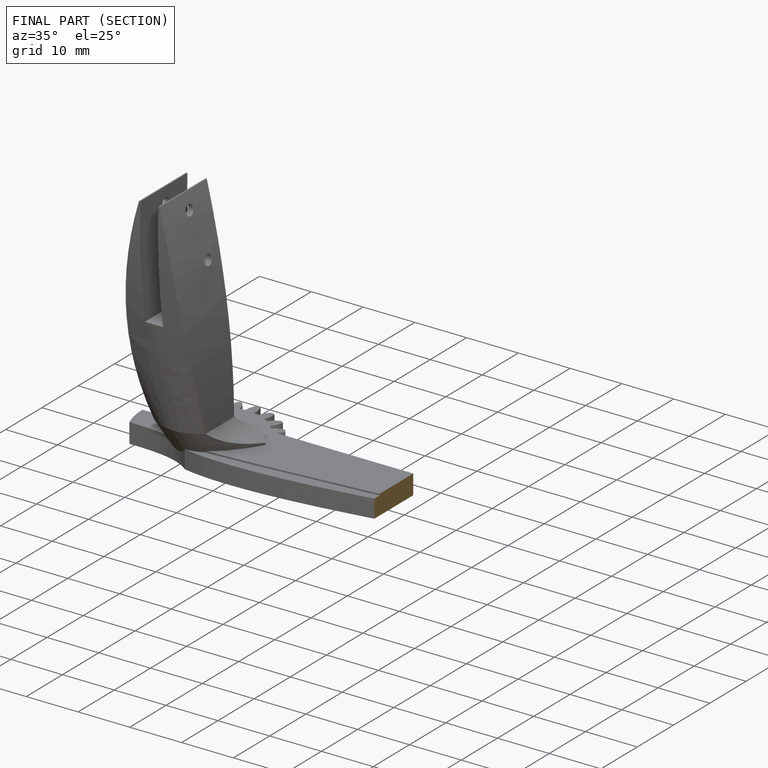
[diagram: finished part — half-section view (interior)]
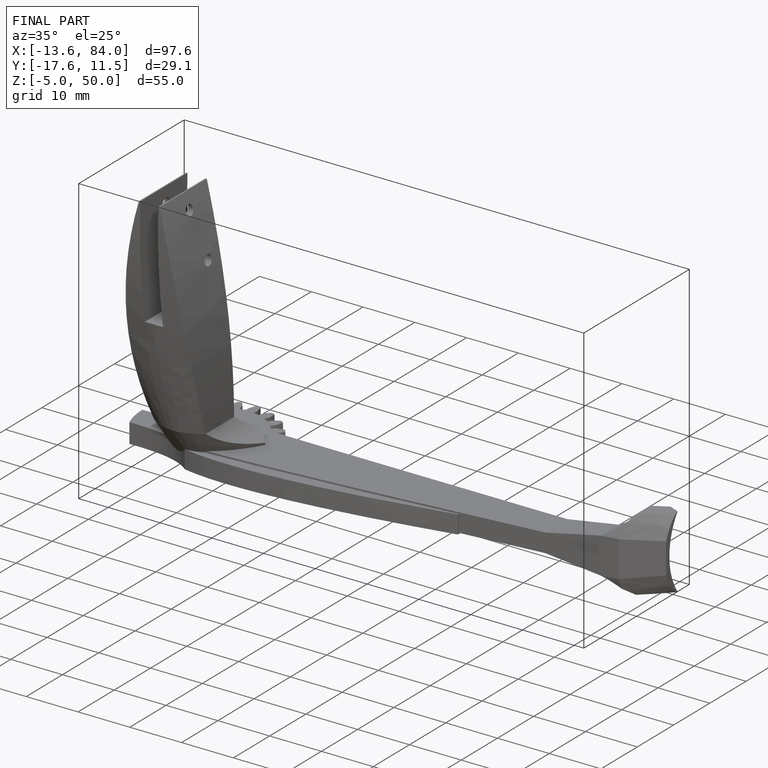
[diagram: finished part — iso view with bounding-box wireframe]
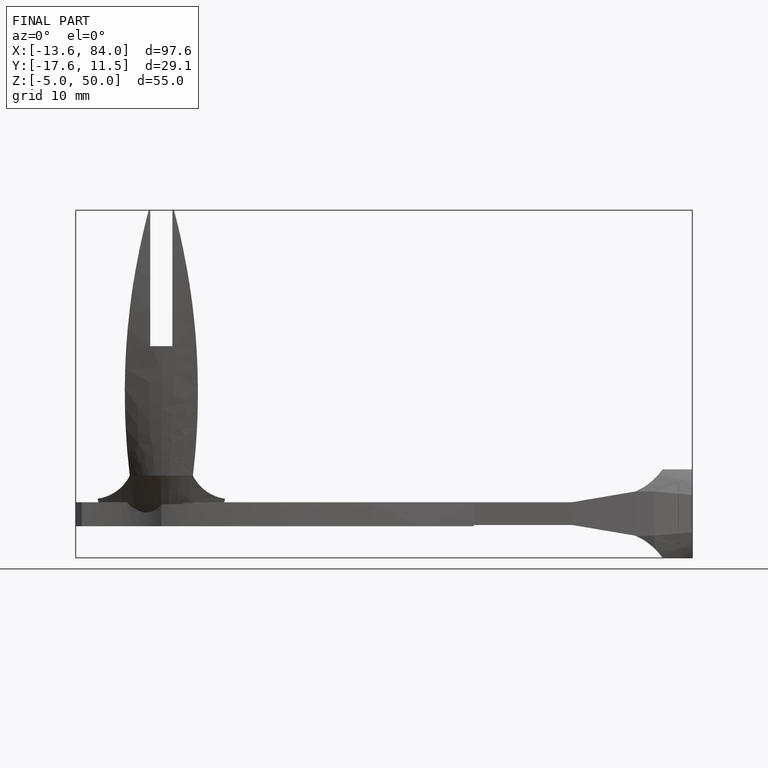
[diagram: finished part — front view with bounding-box wireframe]
